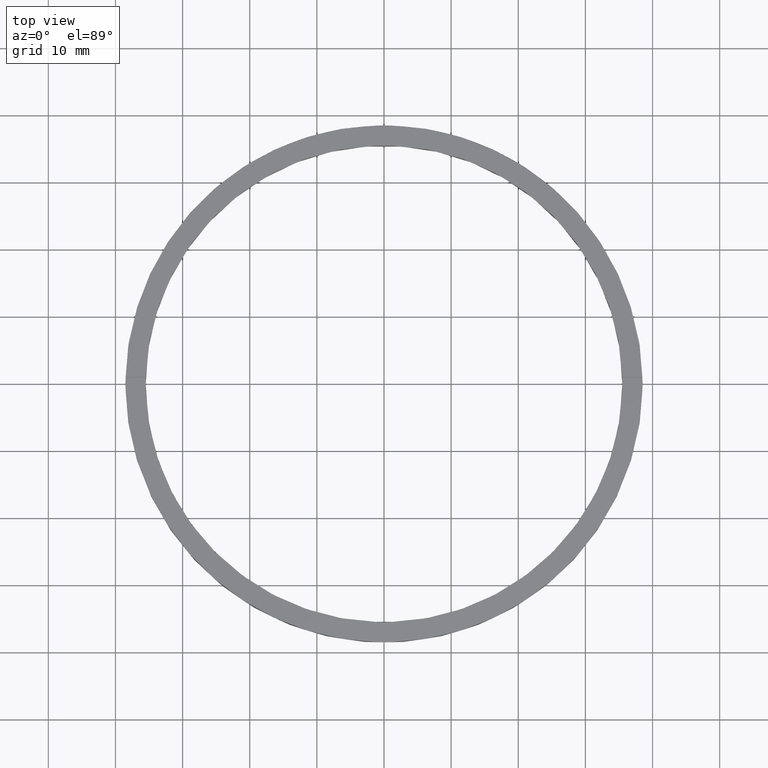
[diagram: clean part render]
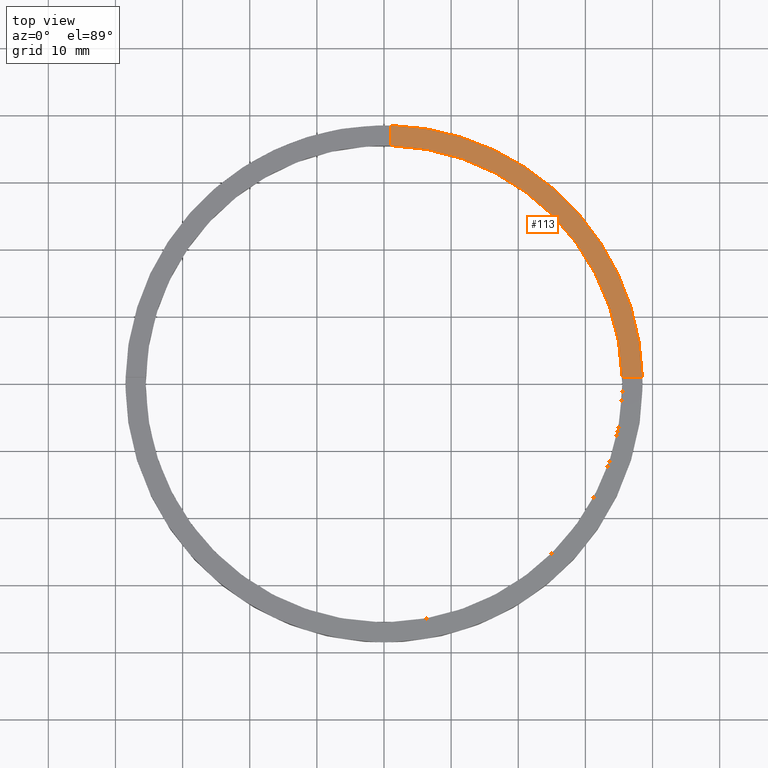
[diagram: same view with one face highlighted and labeled with its STEP entity id]
A machine part, top view. The second image highlights one B-rep face of the part: STEP entity #113.
In plain terms, the highlighted planar face has unit normal (0, 0, 1).
Its self-contained STEP definition (entity closure, byte-faithful):
#27 = EDGE_LOOP ( 'NONE', ( #751, #688, #755, #234 ) ) ;
#41 = CARTESIAN_POINT ( 'NONE',  ( 0.9999999999999746869, 35.48591269785801217, 3.500000000000000000 ) ) ;
#55 = DIRECTION ( 'NONE',  ( -1.000000000000000000, -6.505213034913025371E-17, -0.000000000000000000 ) ) ;
#57 = FACE_OUTER_BOUND ( 'NONE', #27, .T. ) ;
#71 = VERTEX_POINT ( 'NONE', #384 ) ;
#98 = CARTESIAN_POINT ( 'NONE',  ( 0.000000000000000000, 0.000000000000000000, 3.500000000000000000 ) ) ;
#113 = ADVANCED_FACE ( 'NONE', ( #57 ), #718, .T. ) ;
#115 = DIRECTION ( 'NONE',  ( 1.000000000000000000, 0.000000000000000000, -0.000000000000000000 ) ) ;
#126 = CARTESIAN_POINT ( 'NONE',  ( 0.000000000000000000, 0.000000000000000000, 3.500000000000000000 ) ) ;
#129 = AXIS2_PLACEMENT_3D ( 'NONE', #126, #146, #115 ) ;
#138 = DIRECTION ( 'NONE',  ( 1.000000000000000000, 0.000000000000000000, 0.000000000000000000 ) ) ;
#146 = DIRECTION ( 'NONE',  ( 0.000000000000000000, 0.000000000000000000, 1.000000000000000000 ) ) ;
#156 = VERTEX_POINT ( 'NONE', #580 ) ;
#177 = DIRECTION ( 'NONE',  ( 1.000000000000000000, 0.000000000000000000, 0.000000000000000000 ) ) ;
#198 = VERTEX_POINT ( 'NONE', #41 ) ;
#199 = AXIS2_PLACEMENT_3D ( 'NONE', #665, #586, #138 ) ;
#234 = ORIENTED_EDGE ( 'NONE', *, *, #701, .T. ) ;
#254 = LINE ( 'NONE', #305, #509 ) ;
#270 = EDGE_CURVE ( 'NONE', #156, #198, #777, .T. ) ;
#305 = CARTESIAN_POINT ( 'NONE',  ( 28.49999999999998934, 0.9999999999998421263, 3.500000000000000000 ) ) ;
#347 = CIRCLE ( 'NONE', #199, 38.50000000000000000 ) ;
#384 = CARTESIAN_POINT ( 'NONE',  ( 38.48701079585163853, 0.9999999999998427924, 3.500000000000000000 ) ) ;
#402 = DIRECTION ( 'NONE',  ( 0.000000000000000000, 1.000000000000000000, 0.000000000000000000 ) ) ;
#439 = CARTESIAN_POINT ( 'NONE',  ( 0.9999999999999746869, 38.48701079585163143, 3.500000000000000000 ) ) ;
#462 = EDGE_CURVE ( 'NONE', #71, #156, #254, .T. ) ;
#509 = VECTOR ( 'NONE', #55, 1000.000000000000000 ) ;
#520 = LINE ( 'NONE', #723, #589 ) ;
#554 = DIRECTION ( 'NONE',  ( 0.000000000000000000, 0.000000000000000000, 1.000000000000000000 ) ) ;
#561 = AXIS2_PLACEMENT_3D ( 'NONE', #98, #554, #177 ) ;
#564 = EDGE_CURVE ( 'NONE', #198, #708, #520, .T. ) ;
#580 = CARTESIAN_POINT ( 'NONE',  ( 35.48591269785801927, 0.9999999999998425704, 3.500000000000000000 ) ) ;
#586 = DIRECTION ( 'NONE',  ( 0.000000000000000000, 0.000000000000000000, 1.000000000000000000 ) ) ;
#589 = VECTOR ( 'NONE', #402, 1000.000000000000000 ) ;
#665 = CARTESIAN_POINT ( 'NONE',  ( 0.000000000000000000, 0.000000000000000000, 3.500000000000000000 ) ) ;
#688 = ORIENTED_EDGE ( 'NONE', *, *, #270, .F. ) ;
#701 = EDGE_CURVE ( 'NONE', #71, #708, #347, .T. ) ;
#708 = VERTEX_POINT ( 'NONE', #439 ) ;
#718 = PLANE ( 'NONE',  #129 ) ;
#723 = CARTESIAN_POINT ( 'NONE',  ( 0.9999999999999746869, 28.49999999999999645, 3.500000000000000000 ) ) ;
#751 = ORIENTED_EDGE ( 'NONE', *, *, #564, .F. ) ;
#755 = ORIENTED_EDGE ( 'NONE', *, *, #462, .F. ) ;
#777 = CIRCLE ( 'NONE', #561, 35.50000000000000711 ) ;